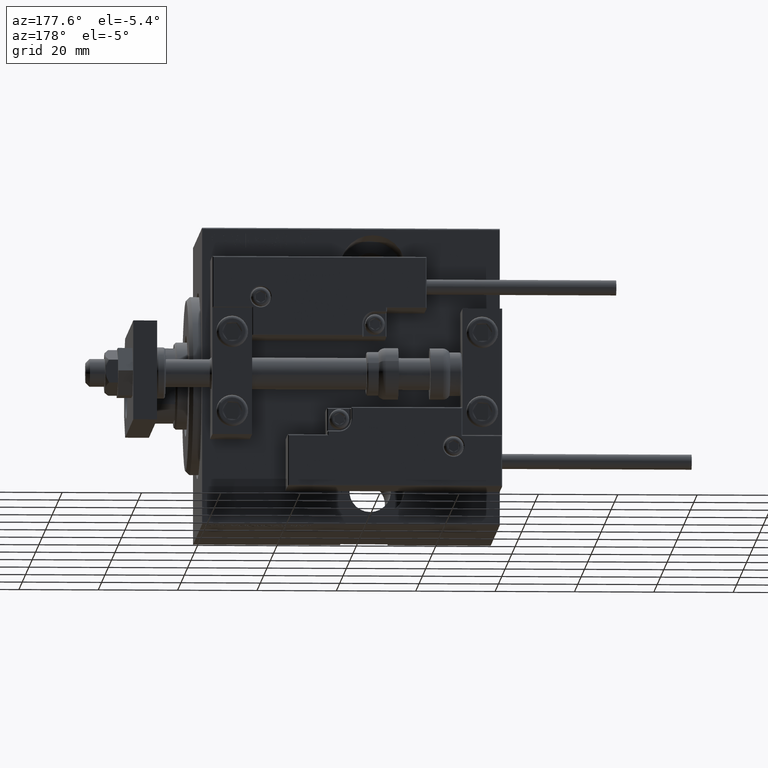
[diagram: clean part render]
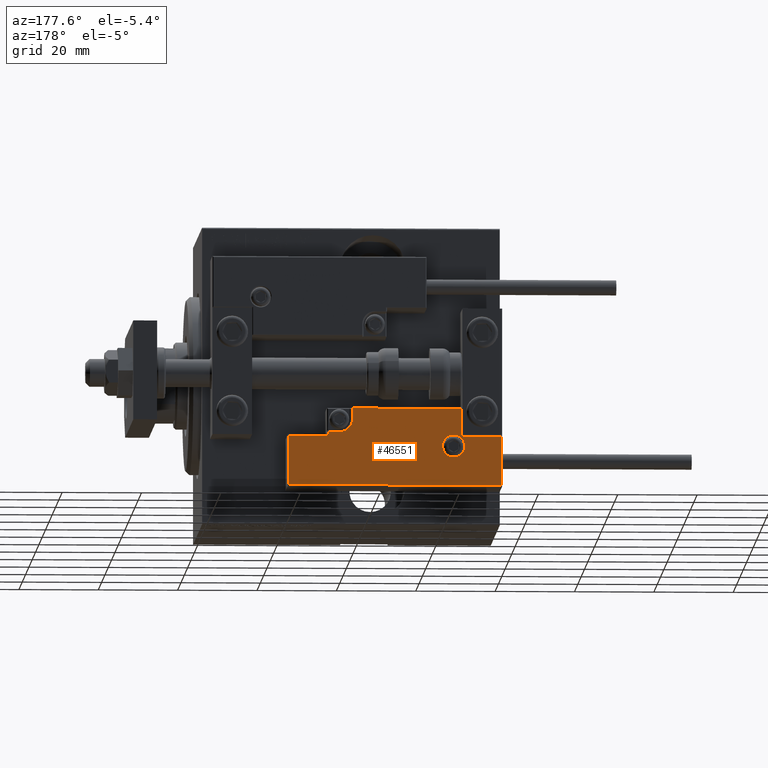
[diagram: same view with one face highlighted and labeled with its STEP entity id]
A machine part, auxiliary view. The second image highlights one B-rep face of the part: STEP entity #46551.
In plain terms, the highlighted planar face has unit normal (-0, 1, 0).
Its self-contained STEP definition (entity closure, byte-faithful):
#819 = AXIS2_PLACEMENT_3D ( 'NONE', #894, #46505, #7695 ) ;
#894 = CARTESIAN_POINT ( 'NONE',  ( -14.79999999999994920, 9.800000000000004263, 14.00000000000000000 ) ) ;
#967 = CARTESIAN_POINT ( 'NONE',  ( 16.69999999999999929, 7.000000000000009770, 14.00000000000000000 ) ) ;
#1540 = AXIS2_PLACEMENT_3D ( 'NONE', #6978, #21868, #33940 ) ;
#2514 = CARTESIAN_POINT ( 'NONE',  ( -26.69999999999994600, 7.000000000000005329, 14.00000000000000000 ) ) ;
#3131 = VECTOR ( 'NONE', #3586, 1000.000000000000000 ) ;
#3371 = CARTESIAN_POINT ( 'NONE',  ( -14.79999999999994920, 9.800000000000004263, 14.00000000000000000 ) ) ;
#3586 = DIRECTION ( 'NONE',  ( 1.000000000000000000, -1.734723475976796001E-16, 0.000000000000000000 ) ) ;
#4167 = DIRECTION ( 'NONE',  ( 9.912705577010318647E-16, 1.000000000000000000, 0.000000000000000000 ) ) ;
#4771 = VECTOR ( 'NONE', #41523, 1000.000000000000000 ) ;
#4819 = ORIENTED_EDGE ( 'NONE', *, *, #20680, .T. ) ;
#4838 = CIRCLE ( 'NONE', #819, 2.800000000000000266 ) ;
#4882 = FACE_OUTER_BOUND ( 'NONE', #34172, .T. ) ;
#5728 = CARTESIAN_POINT ( 'NONE',  ( 16.69999999999999929, 7.300000000000009592, 14.00000000000000000 ) ) ;
#6524 = AXIS2_PLACEMENT_3D ( 'NONE', #47216, #16006, #39156 ) ;
#6906 = VECTOR ( 'NONE', #47429, 1000.000000000000000 ) ;
#6978 = CARTESIAN_POINT ( 'NONE',  ( 13.99999999999999822, 3.000000000000002665, 14.00000000000000000 ) ) ;
#7137 = ORIENTED_EDGE ( 'NONE', *, *, #7917, .T. ) ;
#7348 = VECTOR ( 'NONE', #9617, 1000.000000000000000 ) ;
#7695 = DIRECTION ( 'NONE',  ( 1.000000000000000000, 0.000000000000000000, 0.000000000000000000 ) ) ;
#7741 = EDGE_CURVE ( 'NONE', #13623, #11454, #20575, .T. ) ;
#7917 = EDGE_CURVE ( 'NONE', #36401, #8891, #16952, .T. ) ;
#8138 = CARTESIAN_POINT ( 'NONE',  ( 10.69999999999999929, 0.3000000000000032085, 14.00000000000000000 ) ) ;
#8602 = DIRECTION ( 'NONE',  ( 1.000000000000000000, 5.782411586589357639E-16, -0.000000000000000000 ) ) ;
#8638 = ORIENTED_EDGE ( 'NONE', *, *, #26223, .T. ) ;
#8803 = ORIENTED_EDGE ( 'NONE', *, *, #29926, .T. ) ;
#8891 = VERTEX_POINT ( 'NONE', #27233 ) ;
#8910 = PLANE ( 'NONE',  #6524 ) ;
#9332 = EDGE_CURVE ( 'NONE', #31920, #31533, #20859, .T. ) ;
#9593 = CARTESIAN_POINT ( 'NONE',  ( 17.00000000000000000, 6.300000000000003375, 14.00000000000000000 ) ) ;
#9617 = DIRECTION ( 'NONE',  ( 1.000000000000000000, -0.000000000000000000, 0.000000000000000000 ) ) ;
#9702 = CARTESIAN_POINT ( 'NONE',  ( 16.69999999999999929, 6.300000000000003375, 14.00000000000000000 ) ) ;
#9761 = VECTOR ( 'NONE', #39058, 1000.000000000000000 ) ;
#11454 = VERTEX_POINT ( 'NONE', #26953 ) ;
#11815 = ORIENTED_EDGE ( 'NONE', *, *, #49628, .T. ) ;
#12406 = VERTEX_POINT ( 'NONE', #24428 ) ;
#12450 = FACE_BOUND ( 'NONE', #28634, .T. ) ;
#13087 = VECTOR ( 'NONE', #39196, 1000.000000000000000 ) ;
#13623 = VERTEX_POINT ( 'NONE', #30011 ) ;
#13867 = DIRECTION ( 'NONE',  ( -8.006416042969869188E-16, -1.000000000000000000, 0.000000000000000000 ) ) ;
#14154 = AXIS2_PLACEMENT_3D ( 'NONE', #3371, #26045, #48483 ) ;
#14833 = LINE ( 'NONE', #26150, #4771 ) ;
#15190 = DIRECTION ( 'NONE',  ( 1.000000000000000000, -1.734723475976815230E-16, 0.000000000000000000 ) ) ;
#16006 = DIRECTION ( 'NONE',  ( -0.000000000000000000, 0.000000000000000000, 1.000000000000000000 ) ) ;
#16952 = LINE ( 'NONE', #40109, #6906 ) ;
#17013 = VECTOR ( 'NONE', #8602, 1000.000000000000000 ) ;
#17528 = VERTEX_POINT ( 'NONE', #28922 ) ;
#17639 = LINE ( 'NONE', #2514, #33687 ) ;
#18329 = VERTEX_POINT ( 'NONE', #25823 ) ;
#18367 = CARTESIAN_POINT ( 'NONE',  ( -16.69999999999999218, 7.300000000000003375, 14.00000000000000000 ) ) ;
#18726 = EDGE_CURVE ( 'NONE', #18329, #25694, #26012, .T. ) ;
#19197 = VECTOR ( 'NONE', #15190, 1000.000000000000000 ) ;
#19477 = EDGE_CURVE ( 'NONE', #31533, #36401, #37604, .T. ) ;
#19669 = CARTESIAN_POINT ( 'NONE',  ( 10.69999999999999929, 3.000000000000003109, 14.00000000000000000 ) ) ;
#20310 = CARTESIAN_POINT ( 'NONE',  ( -16.69999999999999218, 3.252606517456513302E-15, 14.00000000000000000 ) ) ;
#20454 = LINE ( 'NONE', #9593, #17013 ) ;
#20492 = VERTEX_POINT ( 'NONE', #40844 ) ;
#20575 = CIRCLE ( 'NONE', #14154, 2.800000000000000266 ) ;
#20680 = EDGE_CURVE ( 'NONE', #33805, #20492, #23275, .T. ) ;
#20859 = LINE ( 'NONE', #967, #47154 ) ;
#21351 = EDGE_CURVE ( 'NONE', #8891, #12406, #14833, .T. ) ;
#21868 = DIRECTION ( 'NONE',  ( 0.000000000000000000, -0.000000000000000000, -1.000000000000000000 ) ) ;
#22121 = ORIENTED_EDGE ( 'NONE', *, *, #18726, .T. ) ;
#22987 = CARTESIAN_POINT ( 'NONE',  ( 27.00000000000006395, 7.300000000000007816, 14.00000000000000000 ) ) ;
#23275 = CIRCLE ( 'NONE', #1540, 3.299999999999997158 ) ;
#23392 = ORIENTED_EDGE ( 'NONE', *, *, #47683, .T. ) ;
#24102 = ORIENTED_EDGE ( 'NONE', *, *, #21351, .T. ) ;
#24428 = CARTESIAN_POINT ( 'NONE',  ( -26.69999999999993534, 19.70000000000002061, 14.00000000000000000 ) ) ;
#25694 = VERTEX_POINT ( 'NONE', #18367 ) ;
#25823 = CARTESIAN_POINT ( 'NONE',  ( -26.69999999999994600, 7.300000000000005151, 14.00000000000000000 ) ) ;
#26012 = LINE ( 'NONE', #49687, #19197 ) ;
#26045 = DIRECTION ( 'NONE',  ( 0.000000000000000000, -0.000000000000000000, -1.000000000000000000 ) ) ;
#26150 = CARTESIAN_POINT ( 'NONE',  ( -26.99999999999993605, 19.70000000000002061, 14.00000000000000000 ) ) ;
#26223 = EDGE_CURVE ( 'NONE', #11454, #13623, #4838, .T. ) ;
#26953 = CARTESIAN_POINT ( 'NONE',  ( -11.99999999999994849, 9.800000000000004263, 14.00000000000000000 ) ) ;
#27233 = CARTESIAN_POINT ( 'NONE',  ( 26.70000000000006324, 19.70000000000001705, 14.00000000000000000 ) ) ;
#27490 = VERTEX_POINT ( 'NONE', #8138 ) ;
#28634 = EDGE_LOOP ( 'NONE', ( #8638, #37558 ) ) ;
#28922 = CARTESIAN_POINT ( 'NONE',  ( -16.69999999999999218, 0.3000000000000032085, 14.00000000000000000 ) ) ;
#29257 = LINE ( 'NONE', #37078, #7348 ) ;
#29926 = EDGE_CURVE ( 'NONE', #17528, #27490, #29257, .T. ) ;
#30011 = CARTESIAN_POINT ( 'NONE',  ( -17.59999999999994813, 9.800000000000004263, 14.00000000000000000 ) ) ;
#31138 = LINE ( 'NONE', #20310, #13087 ) ;
#31533 = VERTEX_POINT ( 'NONE', #5728 ) ;
#31920 = VERTEX_POINT ( 'NONE', #9702 ) ;
#33233 = ORIENTED_EDGE ( 'NONE', *, *, #19477, .T. ) ;
#33687 = VECTOR ( 'NONE', #13867, 1000.000000000000000 ) ;
#33774 = CARTESIAN_POINT ( 'NONE',  ( 10.69999999999999929, 3.000000000000003109, 14.00000000000000000 ) ) ;
#33805 = VERTEX_POINT ( 'NONE', #33774 ) ;
#33940 = DIRECTION ( 'NONE',  ( 1.000000000000000000, 0.000000000000000000, 0.000000000000000000 ) ) ;
#34172 = EDGE_LOOP ( 'NONE', ( #11815, #8803, #23392, #4819, #40661, #43677, #33233, #7137, #24102, #44292, #22121 ) ) ;
#35246 = CARTESIAN_POINT ( 'NONE',  ( 26.70000000000006324, 7.300000000000007816, 14.00000000000000000 ) ) ;
#35964 = EDGE_CURVE ( 'NONE', #12406, #18329, #17639, .T. ) ;
#36401 = VERTEX_POINT ( 'NONE', #35246 ) ;
#37078 = CARTESIAN_POINT ( 'NONE',  ( 11.00000000000000000, 0.3000000000000032085, 14.00000000000000000 ) ) ;
#37558 = ORIENTED_EDGE ( 'NONE', *, *, #7741, .T. ) ;
#37604 = LINE ( 'NONE', #22987, #3131 ) ;
#39058 = DIRECTION ( 'NONE',  ( -0.000000000000000000, 1.000000000000000000, -0.000000000000000000 ) ) ;
#39156 = DIRECTION ( 'NONE',  ( 1.000000000000000000, 0.000000000000000000, 0.000000000000000000 ) ) ;
#39196 = DIRECTION ( 'NONE',  ( 0.000000000000000000, -1.000000000000000000, 0.000000000000000000 ) ) ;
#40109 = CARTESIAN_POINT ( 'NONE',  ( 26.70000000000006324, 20.00000000000001776, 14.00000000000000000 ) ) ;
#40661 = ORIENTED_EDGE ( 'NONE', *, *, #42926, .T. ) ;
#40844 = CARTESIAN_POINT ( 'NONE',  ( 13.99999999999999822, 6.300000000000001599, 14.00000000000000000 ) ) ;
#41523 = DIRECTION ( 'NONE',  ( -1.000000000000000000, 6.424901762877063495E-17, -0.000000000000000000 ) ) ;
#42926 = EDGE_CURVE ( 'NONE', #20492, #31920, #20454, .T. ) ;
#43677 = ORIENTED_EDGE ( 'NONE', *, *, #9332, .T. ) ;
#44292 = ORIENTED_EDGE ( 'NONE', *, *, #35964, .T. ) ;
#46505 = DIRECTION ( 'NONE',  ( 0.000000000000000000, -0.000000000000000000, -1.000000000000000000 ) ) ;
#46551 = ADVANCED_FACE ( 'NONE', ( #12450, #4882 ), #8910, .T. ) ;
#46876 = LINE ( 'NONE', #19669, #9761 ) ;
#47154 = VECTOR ( 'NONE', #4167, 1000.000000000000000 ) ;
#47216 = CARTESIAN_POINT ( 'NONE',  ( 0.000000000000000000, 0.000000000000000000, 14.00000000000000000 ) ) ;
#47429 = DIRECTION ( 'NONE',  ( 0.000000000000000000, 1.000000000000000000, -0.000000000000000000 ) ) ;
#47683 = EDGE_CURVE ( 'NONE', #27490, #33805, #46876, .T. ) ;
#48483 = DIRECTION ( 'NONE',  ( 1.000000000000000000, 0.000000000000000000, 0.000000000000000000 ) ) ;
#49628 = EDGE_CURVE ( 'NONE', #25694, #17528, #31138, .T. ) ;
#49687 = CARTESIAN_POINT ( 'NONE',  ( -16.99999999999999289, 7.300000000000003375, 14.00000000000000000 ) ) ;